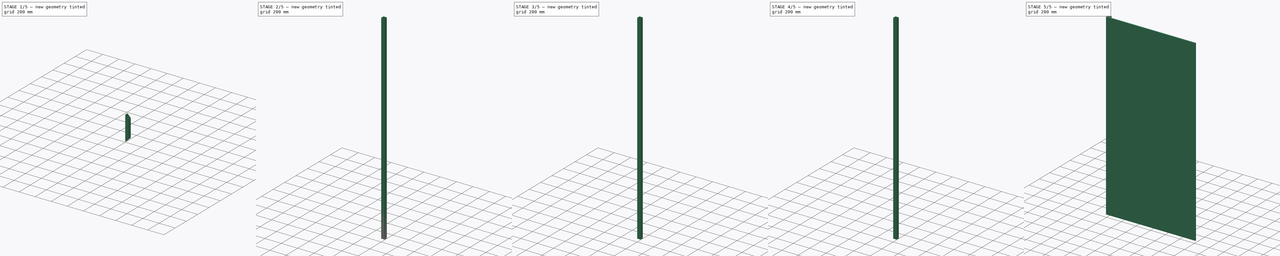
[diagram: build sequence overview — one tinted view per stage of 5, left to right]
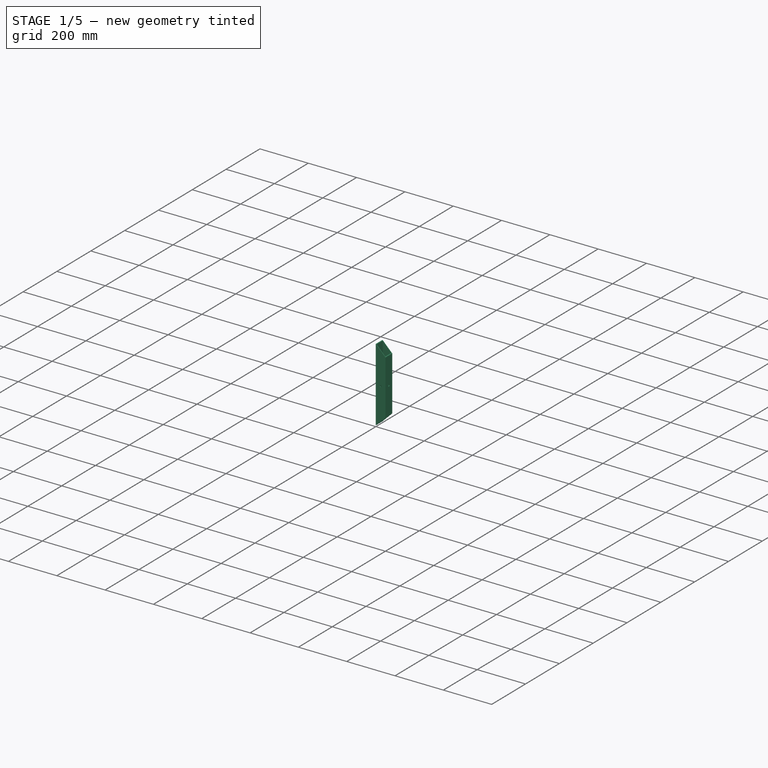
[diagram: stage 1 of 5 — iso view after this stage's code; geometry added in this stage tinted green]
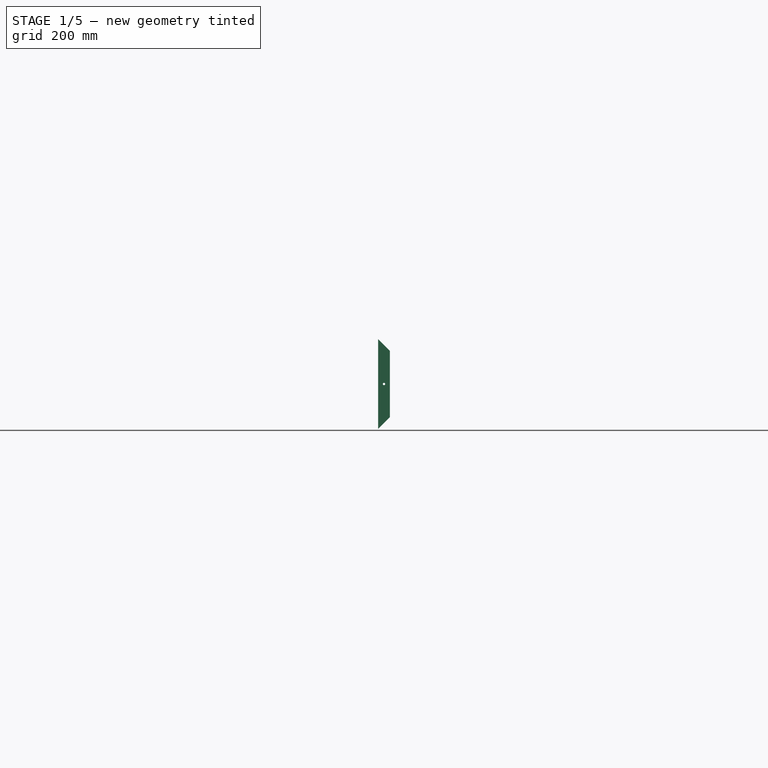
[diagram: stage 1 of 5 — front view after this stage's code; geometry added in this stage tinted green]
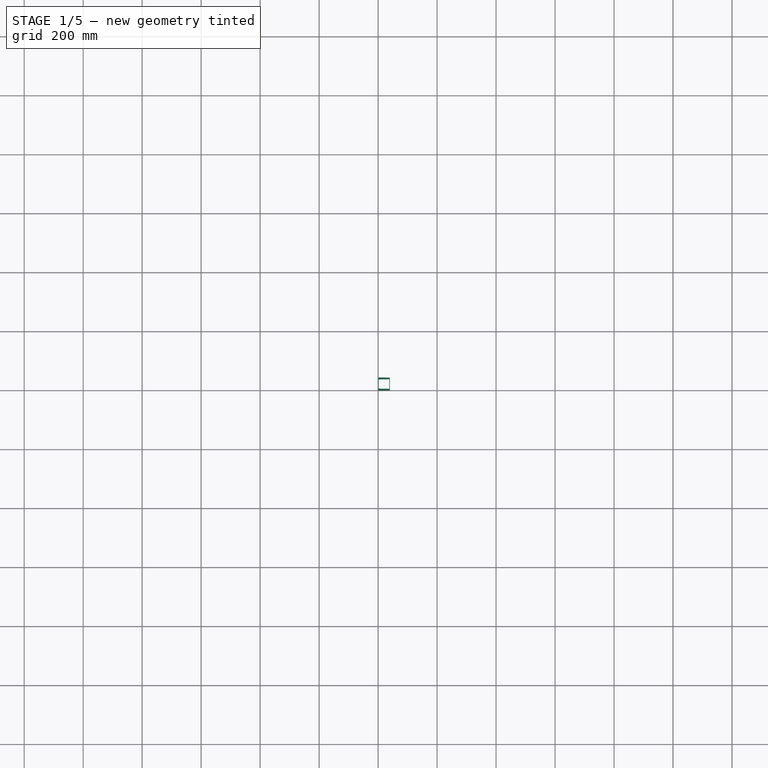
[diagram: stage 1 of 5 — top view after this stage's code; geometry added in this stage tinted green]
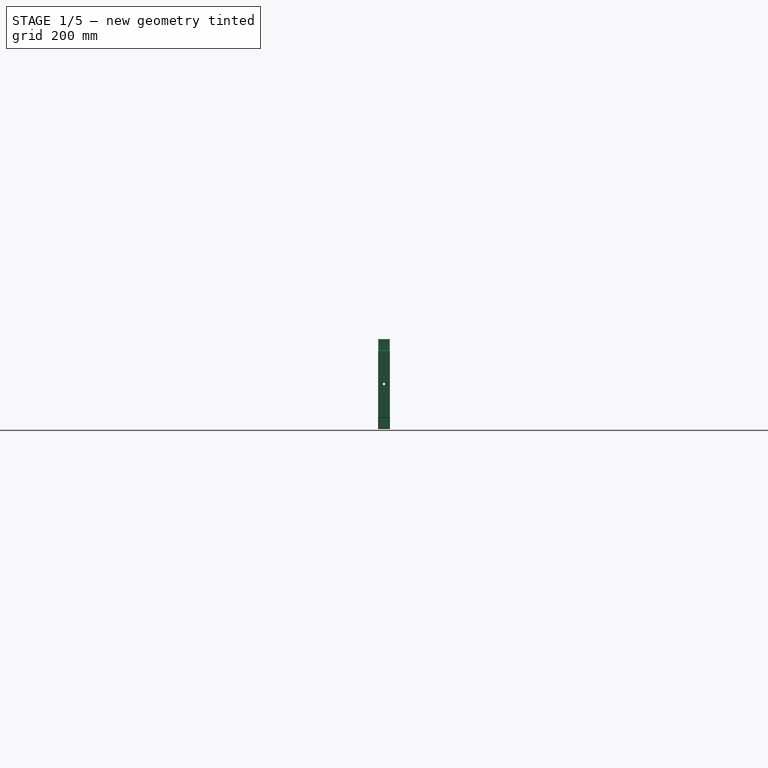
[diagram: stage 1 of 5 — right view after this stage's code; geometry added in this stage tinted green]
FCSTD DOCUMENT  (FreeCAD 1.0R39319 (Git))
Label: MA_booth_01
License: All rights reserved
LicenseURL: https://en.wikipedia.org/wiki/All_rights_reserved
objects: Sketcher::SketchObject×13, PartDesign::Body×8, PartDesign::Draft×8, PartDesign::Pad×7, PartDesign::SubShapeBinder×5, PartDesign::Pocket×5, PartDesign::Line×5, PartDesign::PolarPattern×5, Spreadsheet::Sheet×1
note: 114 computed .brp shape members not serialized (recipe doc carries the construction recipe); baked Part::Feature solids carry a one-line shape summary decoded from their .brp

FEATURE [PartDesign::Body] Body007  label="ply_8x4"
  AllowCompound = false
  Group = -> [Sketch011,Pad005]
  Origin = -> Origin007
  Tip = -> Pad005
FEATURE [PartDesign::SubShapeBinder] Binder004
  BindCopyOnChange = 0
  BindMode = 0
  ClaimChildren = false
  Context = -> Body009 [Binder004.]
  Fuse = false
  MakeFace = true
  OffsetFill = false
  OffsetIntersection = false
  OffsetJoinType = 0
  OffsetOpenResult = false
  PartialLoad = false
  Refine = true
  Relative = true
  _Version = 2
FEATURE [Sketcher::SketchObject] Sketch013
  ArcFitTolerance = 1e-06
  AttachmentSupport = -> [XY_Plane009]
  ExternalGeometry = -> [Binder004]
  FullyConstrained = true
  MakeInternals = false
  MapMode = 5
  sketch-geometry (8):
    g0: LineSegment StartX=0 StartY=0 StartZ=0 EndX=40 EndY=0 EndZ=0
    g1: LineSegment StartX=40 StartY=0 StartZ=0 EndX=40 EndY=40 EndZ=0
    g2: LineSegment StartX=40 StartY=40 StartZ=0 EndX=0 EndY=40 EndZ=0
    g3: LineSegment StartX=0 StartY=40 StartZ=0 EndX=0 EndY=0 EndZ=0
    g4: LineSegment StartX=2 StartY=2 StartZ=0 EndX=38 EndY=2 EndZ=0
    g5: LineSegment StartX=38 StartY=2 StartZ=0 EndX=38 EndY=38 EndZ=0
    g6: LineSegment StartX=38 StartY=38 StartZ=0 EndX=2 EndY=38 EndZ=0
    g7: LineSegment StartX=2 StartY=38 StartZ=0 EndX=2 EndY=2 EndZ=0
  constraints (20):
    c: Coincident(g0,g1)
    c: Coincident(g1,g2)
    c: Coincident(g2,g3)
    c: Coincident(g3,g0)
    c: Horizontal(g0)
    c: Horizontal(g2)
    c: Vertical(g1)
    c: Vertical(g3)
    c: Coincident(g0,g-1)
    c: Coincident(g1,g-5)
    c: Coincident(g4,g5)
    c: Coincident(g5,g6)
    c: Coincident(g6,g7)
    c: Coincident(g7,g4)
    c: Horizontal(g4)
    c: Horizontal(g6)
    c: Vertical(g5)
    c: Vertical(g7)
    c: Coincident(g4,g-4)
    c: Coincident(g5,g-3)
FEATURE [PartDesign::Pad] Pad006
  Direction = (0,0,1)
  Length = 304.8
  Length2 = 10
  Profile = -> Sketch013
  ReferenceAxis = -> Sketch013 [N_Axis]
  Refine = true
  Suppressed = false
  Type = 0
  expr: Length = Spreadsheet.ply_height_8 / 8
FEATURE [PartDesign::Draft] Draft006
  Angle = 45
  Base = -> Pad006 [Face10]
  BaseFeature = -> Pad006
  NeutralPlane = -> Pad006 [Face4]
  Refine = true
  SupportTransform = false
  Suppressed = false
FEATURE [PartDesign::Draft] Draft007
  Angle = 45
  Base = -> Draft006 [Face9]
  BaseFeature = -> Draft006
  NeutralPlane = -> Draft006 [Face4]
  Refine = true
  SupportTransform = false
  Suppressed = false
FEATURE [Sketcher::SketchObject] Sketch014
  ArcFitTolerance = 1e-06
  AttachmentSupport = -> [Draft007]
  ExternalGeometry = -> [Draft007]
  FullyConstrained = true
  MakeInternals = false
  MapMode = 5
  Placement = pos=(0,0,0) rot=(0.57735,-0.57735,-0.57735;2.0944rad)
  expr: Constraints[5] = Spreadsheet.ply_height_8 / 16
  expr: Constraints[7] = Spreadsheet.hole_dia
  sketch-geometry (3):
    g0: LineSegment [constr] StartX=-20 StartY=9e-16 StartZ=0 EndX=-20 EndY=152.4 EndZ=0
    g1: LineSegment [constr] StartX=-20 StartY=152.4 StartZ=0 EndX=-20 EndY=304.8 EndZ=0
    g2: Circle CenterX=-20 CenterY=152.4 CenterZ=0 NormalX=0 NormalY=0 NormalZ=1 AngleXU=0 Radius=4
  constraints (8):
    c: Symmetric(g-3,g-3,g0)
    c: Vertical(g0)
    c: Coincident(g1,g0)
    c: Vertical(g1)
    c: Equal(g1,g0)
    c: Distance(g0,g0) = 152.4
    c: Coincident(g2,g0)
    c: Diameter(g2) = 8
FEATURE [PartDesign::Pocket] Pocket004
  BaseFeature = -> Draft007
  Direction = (1,0,0)
  Length = 5
  Length2 = 5
  Profile = -> Sketch014
  ReferenceAxis = -> Sketch014 [N_Axis]
  Refine = true
  Suppressed = false
  Type = 1
FEATURE [PartDesign::Body] Body006  label="40x40x2x8ft_corner"
  AllowCompound = false
  Group = -> [Sketch009,Binder003,Pad004,Sketch010,Pocket003,DatumLine003,PolarPattern003]
  Origin = -> Origin006
  Tip = -> PolarPattern003
FEATURE [PartDesign::Line] DatumLine004
  AttacherType = Attacher::AttachEngineLine
  AttachmentOffset = pos=(20,20,0) rot=(0,0,1;0rad)
  AttachmentSupport = -> [Z_Axis009]
  Length = 20
  MapMode = 29
  Placement = pos=(20,20,0) rot=(0,0,1;0rad)
  ResizeMode = 0
  expr: .AttachmentOffset.Base.x = Spreadsheet.pipe_x / 2
  expr: .AttachmentOffset.Base.y = Spreadsheet.pipe_y / 2
FEATURE [PartDesign::PolarPattern] PolarPattern004
  Angle = 90
  Axis = -> DatumLine004
  BaseFeature = -> Pocket004
  Mode = 0
  Occurrences = 2
  Offset = 120
  Originals = -> [Pocket004]
  Refine = true
  Suppressed = false
  TransformMode = 0
FEATURE [PartDesign::Body] Body009  label="40x40x2x1ft"
  AllowCompound = false
  Group = -> [Binder004,Sketch013,Pad006,Draft006,Draft007,Sketch014,Pocket004,DatumLine004,PolarPattern004]
  Origin = -> Origin009
  Tip = -> PolarPattern004
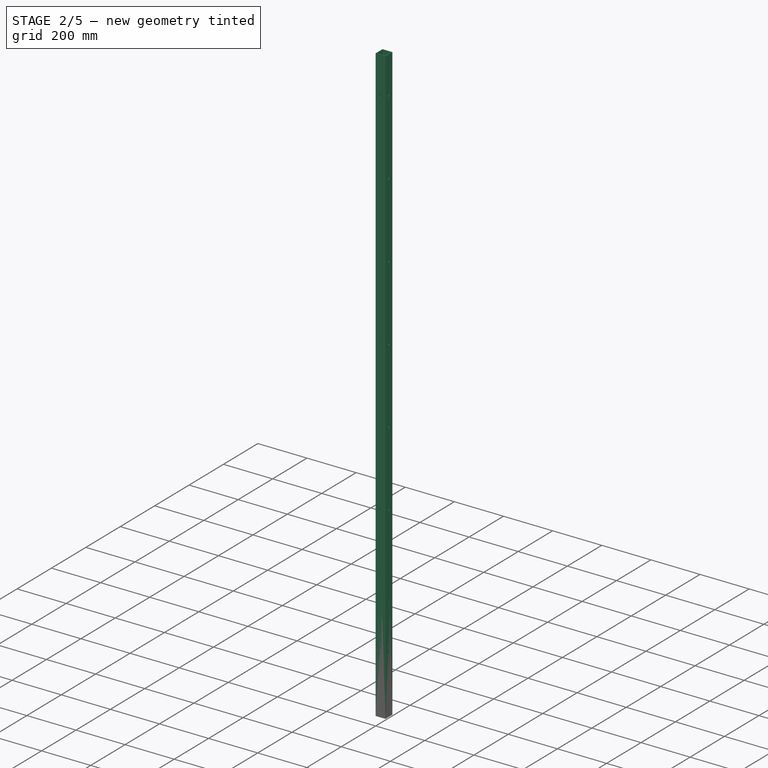
[diagram: stage 2 of 5 — iso view after this stage's code; geometry added in this stage tinted green]
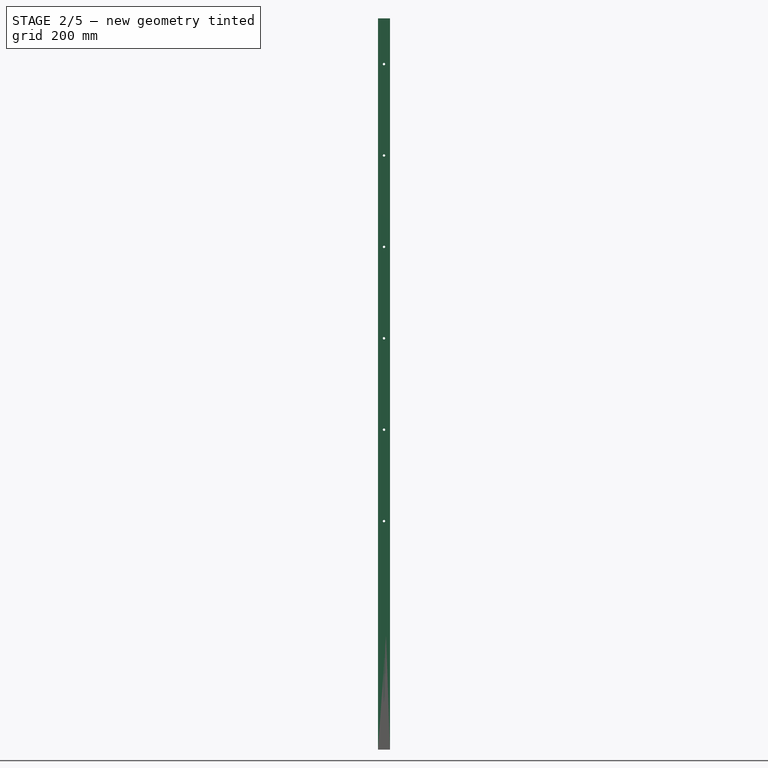
[diagram: stage 2 of 5 — front view after this stage's code; geometry added in this stage tinted green]
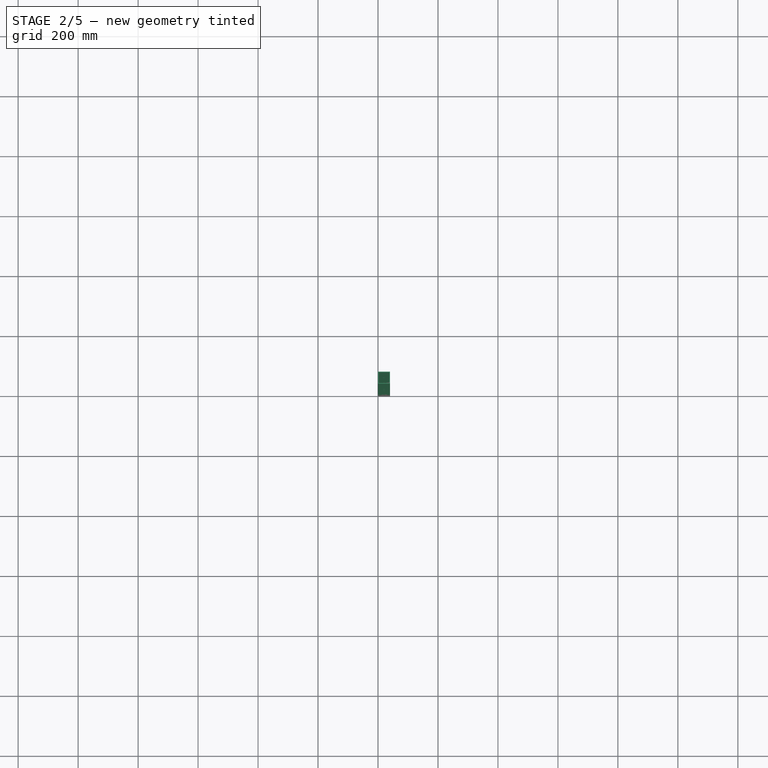
[diagram: stage 2 of 5 — top view after this stage's code; geometry added in this stage tinted green]
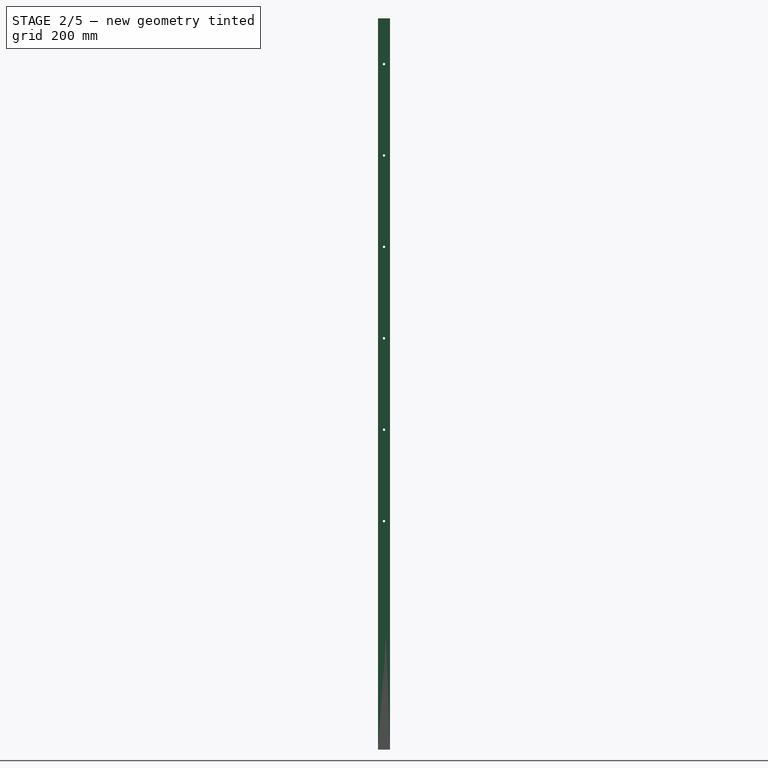
[diagram: stage 2 of 5 — right view after this stage's code; geometry added in this stage tinted green]
FEATURE [PartDesign::SubShapeBinder] Binder002
  BindCopyOnChange = 0
  BindMode = 0
  ClaimChildren = false
  Context = -> Body003 [Binder002.]
  Fuse = false
  MakeFace = true
  OffsetFill = false
  OffsetIntersection = false
  OffsetJoinType = 0
  OffsetOpenResult = false
  PartialLoad = false
  Refine = true
  Relative = true
  Support = -> [Body[Sketch.]]
  _Version = 2
FEATURE [Sketcher::SketchObject] Sketch003
  ArcFitTolerance = 1e-06
  AttachmentSupport = -> [XY_Plane003]
  ExternalGeometry = -> [Binder002]
  FullyConstrained = true
  MakeInternals = false
  MapMode = 5
  sketch-geometry (8):
    g0: LineSegment StartX=0 StartY=0 StartZ=0 EndX=40 EndY=0 EndZ=0
    g1: LineSegment StartX=40 StartY=0 StartZ=0 EndX=40 EndY=40 EndZ=0
    g2: LineSegment StartX=40 StartY=40 StartZ=0 EndX=0 EndY=40 EndZ=0
    g3: LineSegment StartX=0 StartY=40 StartZ=0 EndX=0 EndY=0 EndZ=0
    g4: LineSegment StartX=2 StartY=2 StartZ=0 EndX=38 EndY=2 EndZ=0
    g5: LineSegment StartX=38 StartY=2 StartZ=0 EndX=38 EndY=38 EndZ=0
    g6: LineSegment StartX=38 StartY=38 StartZ=0 EndX=2 EndY=38 EndZ=0
    g7: LineSegment StartX=2 StartY=38 StartZ=0 EndX=2 EndY=2 EndZ=0
  constraints (20):
    c: Coincident(g0,g1)
    c: Coincident(g1,g2)
    c: Coincident(g2,g3)
    c: Coincident(g3,g0)
    c: Horizontal(g0)
    c: Horizontal(g2)
    c: Vertical(g1)
    c: Vertical(g3)
    c: Coincident(g0,g-1)
    c: Coincident(g1,g-5)
    c: Coincident(g4,g5)
    c: Coincident(g5,g6)
    c: Coincident(g6,g7)
    c: Coincident(g7,g4)
    c: Horizontal(g4)
    c: Horizontal(g6)
    c: Vertical(g5)
    c: Vertical(g7)
    c: Coincident(g4,g-4)
    c: Coincident(g5,g-3)
FEATURE [PartDesign::Pad] Pad002
  Direction = (0,0,1)
  Length = 609.6
  Length2 = 10
  Profile = -> Sketch003
  ReferenceAxis = -> Sketch003 [N_Axis]
  Refine = true
  Suppressed = false
  Type = 0
  expr: Length = Spreadsheet.ply_height_8 / 4
FEATURE [PartDesign::Draft] Draft004
  Angle = 45
  Base = -> Pad002 [Face10]
  BaseFeature = -> Pad002
  NeutralPlane = -> Pad002 [Face4]
  Refine = true
  SupportTransform = false
  Suppressed = false
FEATURE [PartDesign::Body] Body004  label="ply_6x3"
  AllowCompound = false
  Group = -> [Sketch007,Pad003]
  Origin = -> Origin004
  Tip = -> Pad003
FEATURE [PartDesign::SubShapeBinder] Binder003
  BindCopyOnChange = 0
  BindMode = 0
  ClaimChildren = false
  Context = -> Body006 [Binder003.]
  Fuse = false
  MakeFace = true
  OffsetFill = false
  OffsetIntersection = false
  OffsetJoinType = 0
  OffsetOpenResult = false
  PartialLoad = false
  Refine = true
  Relative = true
  _Version = 2
FEATURE [Sketcher::SketchObject] Sketch009
  ArcFitTolerance = 1e-06
  AttachmentSupport = -> [XY_Plane006]
  ExternalGeometry = -> [Binder003]
  FullyConstrained = true
  MakeInternals = false
  MapMode = 5
  sketch-geometry (8):
    g0: LineSegment StartX=0 StartY=0 StartZ=0 EndX=40 EndY=0 EndZ=0
    g1: LineSegment StartX=40 StartY=0 StartZ=0 EndX=40 EndY=40 EndZ=0
    g2: LineSegment StartX=40 StartY=40 StartZ=0 EndX=0 EndY=40 EndZ=0
    g3: LineSegment StartX=0 StartY=40 StartZ=0 EndX=0 EndY=0 EndZ=0
    g4: LineSegment StartX=2 StartY=2 StartZ=0 EndX=38 EndY=2 EndZ=0
    g5: LineSegment StartX=38 StartY=2 StartZ=0 EndX=38 EndY=38 EndZ=0
    g6: LineSegment StartX=38 StartY=38 StartZ=0 EndX=2 EndY=38 EndZ=0
    g7: LineSegment StartX=2 StartY=38 StartZ=0 EndX=2 EndY=2 EndZ=0
  constraints (20):
    c: Coincident(g0,g1)
    c: Coincident(g1,g2)
    c: Coincident(g2,g3)
    c: Coincident(g3,g0)
    c: Horizontal(g0)
    c: Horizontal(g2)
    c: Vertical(g1)
    c: Vertical(g3)
    c: Coincident(g0,g-1)
    c: Coincident(g1,g-3)
    c: Coincident(g4,g5)
    c: Coincident(g5,g6)
    c: Coincident(g6,g7)
    c: Coincident(g7,g4)
    c: Horizontal(g4)
    c: Horizontal(g6)
    c: Vertical(g5)
    c: Vertical(g7)
    c: Coincident(g4,g-6)
    c: Coincident(g5,g-4)
FEATURE [PartDesign::Pad] Pad004
  Direction = (0,0,1)
  Length = 2438.4
  Length2 = 10
  Profile = -> Sketch009
  ReferenceAxis = -> Sketch009 [N_Axis]
  Refine = true
  Suppressed = false
  Type = 0
  expr: Length = Spreadsheet.ply_height_8
FEATURE [Sketcher::SketchObject] Sketch010
  ArcFitTolerance = 1e-06
  AttachmentSupport = -> [Pad004]
  ExternalGeometry = -> [Pad004,Binder003]
  FullyConstrained = true
  MakeInternals = false
  MapMode = 5
  Placement = pos=(0,0,0) rot=(0.57735,-0.57735,-0.57735;2.0944rad)
  expr: Constraints[20] = Spreadsheet.ply_height_8 / 16
  expr: Constraints[34] = Spreadsheet.hole_dia
  sketch-geometry (31):
    g0: LineSegment [constr] StartX=-20 StartY=0 StartZ=0 EndX=-20 EndY=152.4 EndZ=0
    g1: LineSegment [constr] StartX=-20 StartY=152.4 StartZ=0 EndX=-20 EndY=304.8 EndZ=0
    g2: LineSegment [constr] StartX=-20 StartY=304.8 StartZ=0 EndX=-20 EndY=457.2 EndZ=0
    g3: LineSegment [constr] StartX=-20 StartY=457.2 StartZ=0 EndX=-20 EndY=609.6 EndZ=0
    g4: LineSegment [constr] StartX=-20 StartY=609.6 StartZ=0 EndX=-20 EndY=762 EndZ=0
    g5: LineSegment [constr] StartX=-20 StartY=762 StartZ=0 EndX=-20 EndY=914.4 EndZ=0
    g6: LineSegment [constr] StartX=-20 StartY=914.4 StartZ=0 EndX=-20 EndY=1066.8 EndZ=0
    g7: LineSegment [constr] StartX=-20 StartY=1066.8 StartZ=0 EndX=-20 EndY=1219.2 EndZ=0
    g8: Circle CenterX=-20 CenterY=1066.8 CenterZ=0 NormalX=0 NormalY=0 NormalZ=1 AngleXU=0 Radius=4
    g9: Circle [constr] CenterX=-20 CenterY=914.4 CenterZ=0 NormalX=0 NormalY=0 NormalZ=1 AngleXU=0 Radius=4
    g10: Circle CenterX=-20 CenterY=762 CenterZ=0 NormalX=0 NormalY=0 NormalZ=1 AngleXU=0 Radius=4
    g11: Circle [constr] CenterX=-20 CenterY=609.6 CenterZ=0 NormalX=0 NormalY=0 NormalZ=1 AngleXU=0 Radius=4
    g12: Circle CenterX=-20 CenterY=457.2 CenterZ=0 NormalX=0 NormalY=0 NormalZ=1 AngleXU=0 Radius=4
    g13: Circle [constr] CenterX=-20 CenterY=304.8 CenterZ=0 NormalX=0 NormalY=0 NormalZ=1 AngleXU=0 Radius=4
    g14: Circle CenterX=-20 CenterY=152.4 CenterZ=0 NormalX=0 NormalY=0 NormalZ=1 AngleXU=0 Radius=4
    g15: LineSegment [constr] StartX=-20 StartY=1219.2 StartZ=0 EndX=-20 EndY=1371.6 EndZ=0
    g16: LineSegment [constr] StartX=-20 StartY=1371.6 StartZ=0 EndX=-20 EndY=1524 EndZ=0
    g17: LineSegment [constr] StartX=-20 StartY=1524 StartZ=0 EndX=-20 EndY=1676.4 EndZ=0
    g18: LineSegment [constr] StartX=-20 StartY=1676.4 StartZ=0 EndX=-20 EndY=1828.8 EndZ=0
    g19: LineSegment [constr] StartX=-20 StartY=1828.8 StartZ=0 EndX=-20 EndY=1981.2 EndZ=0
    g20: LineSegment [constr] StartX=-20 StartY=1981.2 StartZ=0 EndX=-20 EndY=2133.6 EndZ=0
    g21: LineSegment [constr] StartX=-20 StartY=2133.6 StartZ=0 EndX=-20 EndY=2286 EndZ=0
    g22: LineSegment [constr] StartX=-20 StartY=2286 StartZ=0 EndX=-20 EndY=2438.4 EndZ=0
    g23: Circle [constr] CenterX=-20 CenterY=1219.2 CenterZ=0 NormalX=0 NormalY=0 NormalZ=1 AngleXU=0 Radius=4
    g24: Circle CenterX=-20 CenterY=1371.6 CenterZ=0 NormalX=0 NormalY=0 NormalZ=1 AngleXU=0 Radius=4
    g25: Circle [constr] CenterX=-20 CenterY=1524 CenterZ=0 NormalX=0 NormalY=0 NormalZ=1 AngleXU=0 Radius=4
    g26: Circle CenterX=-20 CenterY=1676.4 CenterZ=0 NormalX=0 NormalY=0 NormalZ=1 AngleXU=0 Radius=4
    g27: Circle [constr] CenterX=-20 CenterY=1828.8 CenterZ=0 NormalX=0 NormalY=0 NormalZ=1 AngleXU=0 Radius=4
    g28: Circle CenterX=-20 CenterY=1981.2 CenterZ=0 NormalX=0 NormalY=0 NormalZ=1 AngleXU=0 Radius=4
    g29: Circle [constr] CenterX=-20 CenterY=2133.6 CenterZ=0 NormalX=0 NormalY=0 NormalZ=1 AngleXU=0 Radius=4
    g30: Circle CenterX=-20 CenterY=2286 CenterZ=0 NormalX=0 NormalY=0 NormalZ=1 AngleXU=0 Radius=4
  constraints (77):
    c: Vertical(g0)
    c: Coincident(g1,g0)
    c: Vertical(g1)
    c: Coincident(g2,g1)
    c: Vertical(g2)
    c: Coincident(g3,g2)
    c: Vertical(g3)
    c: Coincident(g4,g3)
    c: Vertical(g4)
    c: Coincident(g5,g4)
    c: Vertical(g5)
    c: Coincident(g6,g5)
    c: Vertical(g6)
    c: Coincident(g7,g6)
    c: Equal(g6,g5)
    c: Equal(g5,g4)
    c: Equal(g4,g3)
    c: Equal(g3,g2)
    c: Equal(g2,g1)
    c: Equal(g1,g0)
    c: Distance(g0,g0) = 152.4
    c: Coincident(g8,g6)
    c: Coincident(g9,g5)
    c: Coincident(g10,g4)
    c: Coincident(g11,g3)
    c: Coincident(g12,g2)
    c: Coincident(g13,g1)
    c: Coincident(g14,g0)
    c: Equal(g14,g13)
    c: Equal(g13,g12)
    c: Equal(g12,g11)
    c: Equal(g11,g10)
    c: Equal(g10,g9)
    c: Equal(g9,g8)
    c: Diameter(g8) = 8
    c: Symmetric(g-4,g-1,g0)
    c: Coincident(g15,g7)
    c: Vertical(g15)
    c: Coincident(g16,g15)
    c: Vertical(g16)
    c: Coincident(g17,g16)
    c: Vertical(g17)
    c: Coincident(g18,g17)
    c: Vertical(g18)
    c: Coincident(g19,g18)
    c: Vertical(g19)
    c: Coincident(g20,g19)
    c: Vertical(g20)
    c: Coincident(g21,g20)
    c: Vertical(g21)
    c: Coincident(g22,g21)
    c: Symmetric(g-3,g-3,g22)
    c: Vertical(g22)
    c: Equal(g22,g21)
    c: Equal(g21,g20)
    c: Equal(g20,g19)
    c: Equal(g19,g18)
    c: Equal(g18,g17)
    c: Equal(g17,g16)
    c: Equal(g16,g15)
    c: Equal(g15,g7)
    c: Coincident(g23,g7)
    c: Coincident(g24,g15)
    c: Coincident(g25,g16)
    c: Coincident(g26,g17)
    c: Coincident(g27,g18)
    c: Coincident(g28,g19)
    c: Coincident(g29,g20)
    c: Coincident(g30,g21)
    c: Equal(g30,g29)
    c: Equal(g29,g28)
    c: Equal(g28,g27)
    c: Equal(g27,g26)
    c: Equal(g26,g25)
    c: Equal(g25,g24)
    c: Equal(g24,g23)
    c: Equal(g23,g8)
FEATURE [PartDesign::Pocket] Pocket003
  BaseFeature = -> Pad004
  Direction = (1,0,0)
  Length = 5
  Length2 = 5
  Profile = -> Sketch010
  ReferenceAxis = -> Sketch010 [N_Axis]
  Refine = true
  Suppressed = false
  Type = 1
FEATURE [PartDesign::Body] Body003  label="40x40x2x2ft"
  AllowCompound = false
  Group = -> [Binder002,Sketch003,Pad002,Draft004,Draft005,Sketch006,Pocket002,DatumLine002,PolarPattern002]
  Origin = -> Origin003
  Tip = -> PolarPattern002
FEATURE [PartDesign::Line] DatumLine003
  AttacherType = Attacher::AttachEngineLine
  AttachmentOffset = pos=(20,20,0) rot=(0,0,1;0rad)
  AttachmentSupport = -> [Z_Axis006]
  Length = 20
  MapMode = 29
  Placement = pos=(20,20,0) rot=(0,0,1;0rad)
  ResizeMode = 0
  expr: .AttachmentOffset.Base.x = Spreadsheet.pipe_x / 2
  expr: .AttachmentOffset.Base.y = Spreadsheet.pipe_y / 2
FEATURE [PartDesign::PolarPattern] PolarPattern003
  Angle = 90
  Axis = -> DatumLine003
  BaseFeature = -> Pocket003
  Mode = 0
  Occurrences = 2
  Offset = 120
  Originals = -> [Pocket003]
  Refine = true
  Suppressed = false
  TransformMode = 0
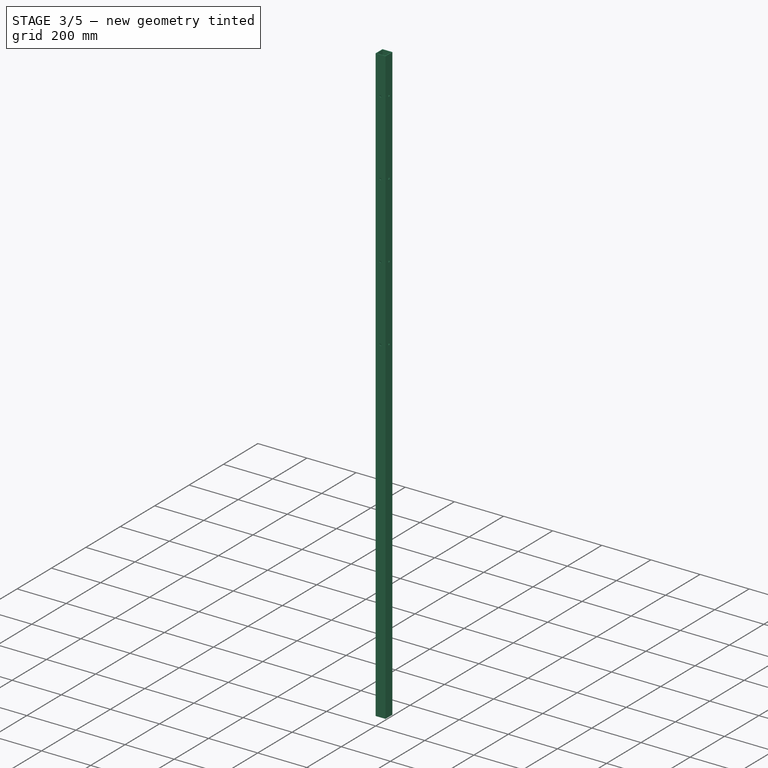
[diagram: stage 3 of 5 — iso view after this stage's code; geometry added in this stage tinted green]
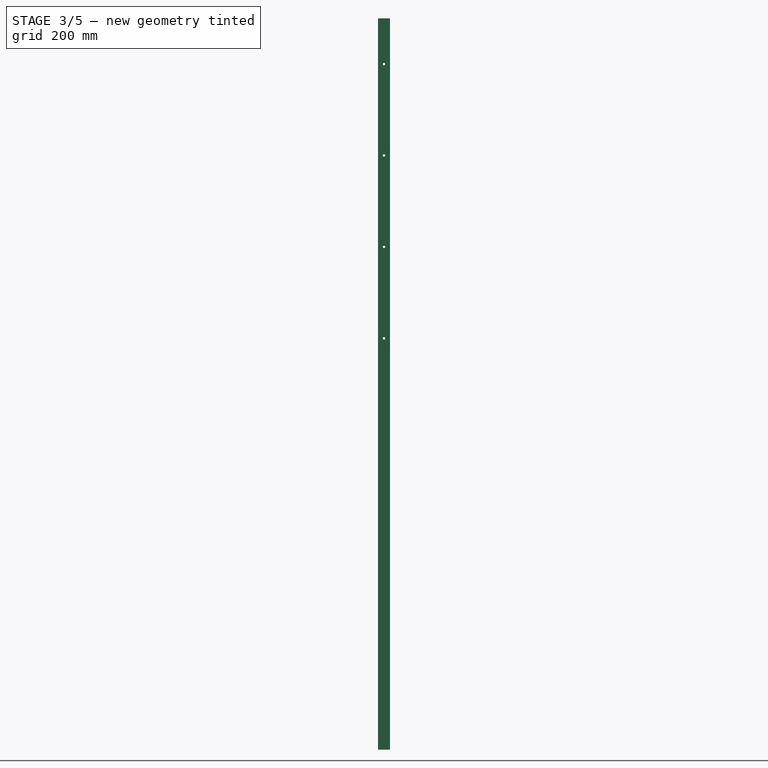
[diagram: stage 3 of 5 — front view after this stage's code; geometry added in this stage tinted green]
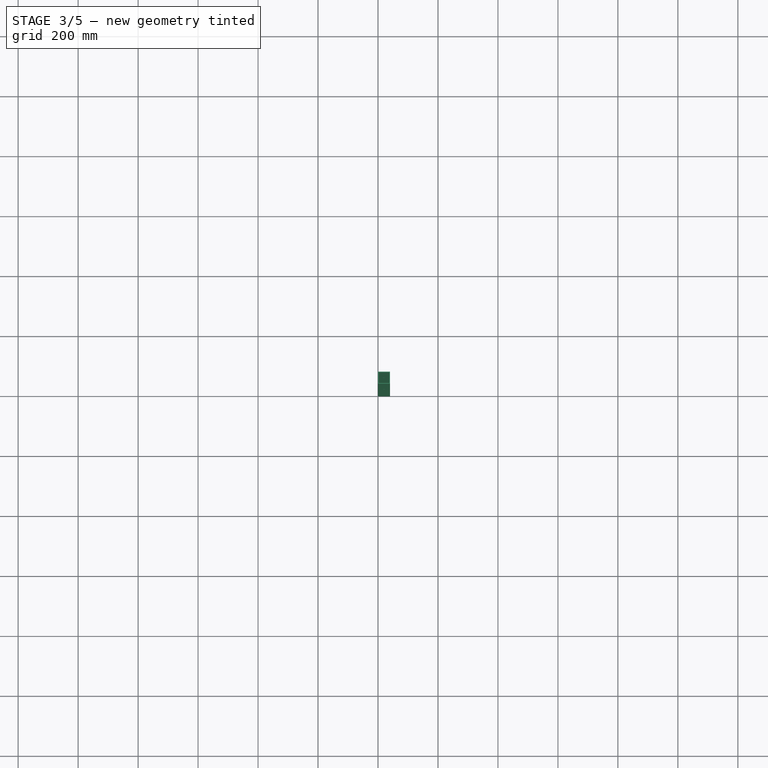
[diagram: stage 3 of 5 — top view after this stage's code; geometry added in this stage tinted green]
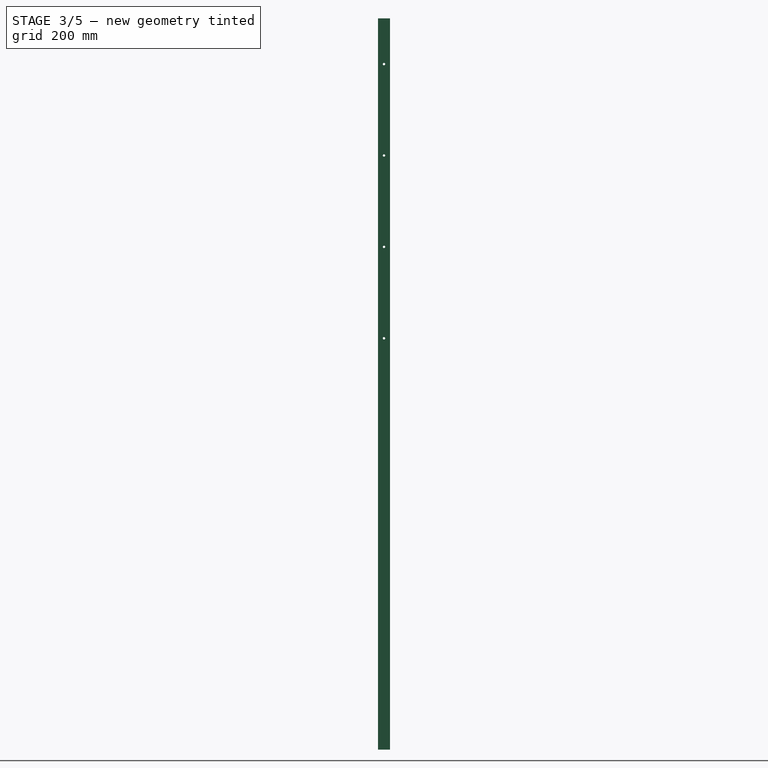
[diagram: stage 3 of 5 — right view after this stage's code; geometry added in this stage tinted green]
FEATURE [PartDesign::SubShapeBinder] Binder001
  BindCopyOnChange = 0
  BindMode = 0
  ClaimChildren = false
  Context = -> Body002 [Binder001.]
  Fuse = false
  MakeFace = true
  OffsetFill = false
  OffsetIntersection = false
  OffsetJoinType = 0
  OffsetOpenResult = false
  PartialLoad = false
  Refine = true
  Relative = true
  Support = -> [Body[Sketch.]]
  _Version = 2
FEATURE [Sketcher::SketchObject] Sketch002
  ArcFitTolerance = 1e-06
  AttachmentSupport = -> [XY_Plane002]
  ExternalGeometry = -> [Binder001]
  FullyConstrained = true
  MakeInternals = false
  MapMode = 5
  sketch-geometry (8):
    g0: LineSegment StartX=0 StartY=0 StartZ=0 EndX=40 EndY=0 EndZ=0
    g1: LineSegment StartX=40 StartY=0 StartZ=0 EndX=40 EndY=40 EndZ=0
    g2: LineSegment StartX=40 StartY=40 StartZ=0 EndX=0 EndY=40 EndZ=0
    g3: LineSegment StartX=0 StartY=40 StartZ=0 EndX=0 EndY=0 EndZ=0
    g4: LineSegment StartX=2 StartY=2 StartZ=0 EndX=38 EndY=2 EndZ=0
    g5: LineSegment StartX=38 StartY=2 StartZ=0 EndX=38 EndY=38 EndZ=0
    g6: LineSegment StartX=38 StartY=38 StartZ=0 EndX=2 EndY=38 EndZ=0
    g7: LineSegment StartX=2 StartY=38 StartZ=0 EndX=2 EndY=2 EndZ=0
  constraints (20):
    c: Coincident(g0,g1)
    c: Coincident(g1,g2)
    c: Coincident(g2,g3)
    c: Coincident(g3,g0)
    c: Horizontal(g0)
    c: Horizontal(g2)
    c: Vertical(g1)
    c: Vertical(g3)
    c: Coincident(g0,g-1)
    c: Coincident(g1,g-6)
    c: Coincident(g4,g5)
    c: Coincident(g5,g6)
    c: Coincident(g6,g7)
    c: Coincident(g7,g4)
    c: Horizontal(g4)
    c: Horizontal(g6)
    c: Vertical(g5)
    c: Vertical(g7)
    c: Coincident(g4,g-3)
    c: Coincident(g5,g-4)
FEATURE [PartDesign::Pad] Pad001
  Direction = (0,0,1)
  Length = 1219.2
  Length2 = 10
  Profile = -> Sketch002
  ReferenceAxis = -> Sketch002 [N_Axis]
  Refine = true
  Suppressed = false
  Type = 0
  expr: Length = Spreadsheet.ply_width_8
FEATURE [PartDesign::Draft] Draft002
  Angle = 45
  Base = -> Pad001 [Face10]
  BaseFeature = -> Pad001
  NeutralPlane = -> Pad001 [Face4]
  Refine = true
  SupportTransform = false
  Suppressed = false
FEATURE [PartDesign::Draft] Draft005
  Angle = 45
  Base = -> Draft004 [Face9]
  BaseFeature = -> Draft004
  NeutralPlane = -> Draft004 [Face4]
  Refine = true
  SupportTransform = false
  Suppressed = false
FEATURE [Sketcher::SketchObject] Sketch006
  ArcFitTolerance = 1e-06
  AttachmentSupport = -> [Draft005]
  ExternalGeometry = -> [Draft005]
  FullyConstrained = true
  MakeInternals = false
  MapMode = 5
  Placement = pos=(0,0,0) rot=(0.57735,-0.57735,-0.57735;2.0944rad)
  expr: Constraints[5] = Spreadsheet.ply_height_8 / 16
  expr: Constraints[7] = Spreadsheet.hole_dia
  sketch-geometry (7):
    g0: LineSegment [constr] StartX=-20 StartY=9e-16 StartZ=0 EndX=-20 EndY=152.4 EndZ=0
    g1: LineSegment [constr] StartX=-20 StartY=152.4 StartZ=0 EndX=-20 EndY=304.8 EndZ=0
    g2: Circle CenterX=-20 CenterY=152.4 CenterZ=0 NormalX=0 NormalY=0 NormalZ=1 AngleXU=0 Radius=4
    g3: LineSegment [constr] StartX=-20 StartY=304.8 StartZ=0 EndX=-20 EndY=457.2 EndZ=0
    g4: LineSegment [constr] StartX=-20 StartY=457.2 StartZ=0 EndX=-20 EndY=609.6 EndZ=0
    g5: Circle [constr] CenterX=-20 CenterY=304.8 CenterZ=0 NormalX=0 NormalY=0 NormalZ=1 AngleXU=0 Radius=4
    g6: Circle CenterX=-20 CenterY=457.2 CenterZ=0 NormalX=0 NormalY=0 NormalZ=1 AngleXU=0 Radius=4
  constraints (17):
    c: Symmetric(g-4,g-4,g0)
    c: Vertical(g0)
    c: Coincident(g1,g0)
    c: Vertical(g1)
    c: Equal(g1,g0)
    c: Distance(g0,g0) = 152.4
    c: Coincident(g2,g0)
    c: Diameter(g2) = 8
    c: Coincident(g3,g1)
    c: Vertical(g3)
    c: Coincident(g4,g3)
    c: Symmetric(g-3,g-3,g4)
    c: Equal(g4,g3)
    c: Coincident(g5,g1)
    c: Coincident(g6,g3)
    c: Equal(g2,g5)
    c: Equal(g5,g6)
FEATURE [PartDesign::Pocket] Pocket002
  BaseFeature = -> Draft005
  Direction = (1,0,0)
  Length = 5
  Length2 = 5
  Profile = -> Sketch006
  ReferenceAxis = -> Sketch006 [N_Axis]
  Refine = true
  Suppressed = false
  Type = 1
FEATURE [PartDesign::Body] Body002  label="40x40x2x4ft"
  AllowCompound = false
  Group = -> [Binder001,Sketch002,Pad001,Draft002,Draft003,Sketch005,Pocket001,DatumLine001,PolarPattern001]
  Origin = -> Origin002
  Tip = -> PolarPattern001
FEATURE [PartDesign::Line] DatumLine002
  AttacherType = Attacher::AttachEngineLine
  AttachmentOffset = pos=(20,20,0) rot=(0,0,1;0rad)
  AttachmentSupport = -> [Z_Axis003]
  Length = 20
  MapMode = 29
  Placement = pos=(20,20,0) rot=(0,0,1;0rad)
  ResizeMode = 0
  expr: .AttachmentOffset.Base.x = Spreadsheet.pipe_x / 2
  expr: .AttachmentOffset.Base.y = Spreadsheet.pipe_y / 2
FEATURE [PartDesign::PolarPattern] PolarPattern002
  Angle = 90
  Axis = -> DatumLine002
  BaseFeature = -> Pocket002
  Mode = 0
  Occurrences = 2
  Offset = 120
  Originals = -> [Pocket002]
  Refine = true
  Suppressed = false
  TransformMode = 0
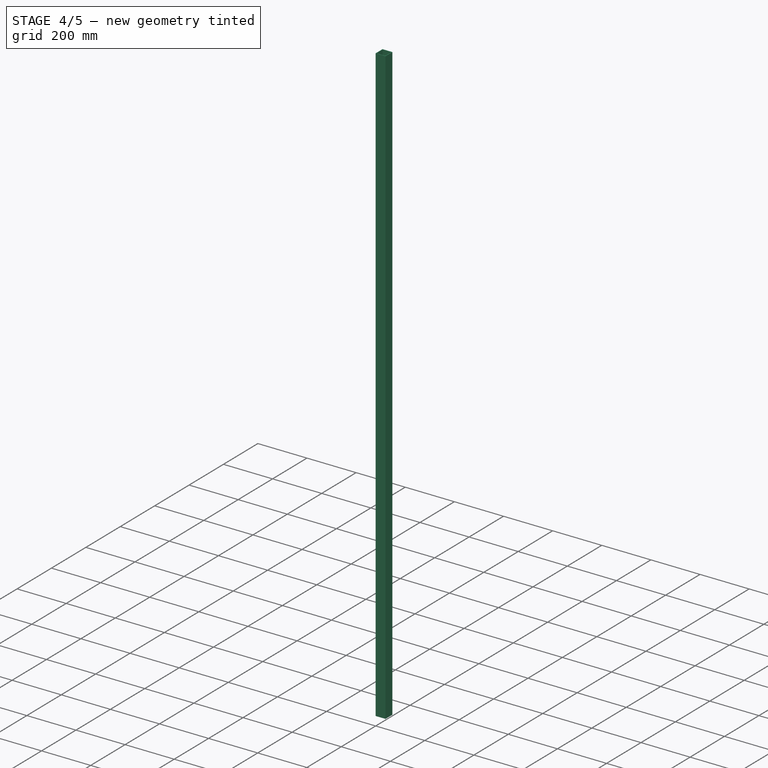
[diagram: stage 4 of 5 — iso view after this stage's code; geometry added in this stage tinted green]
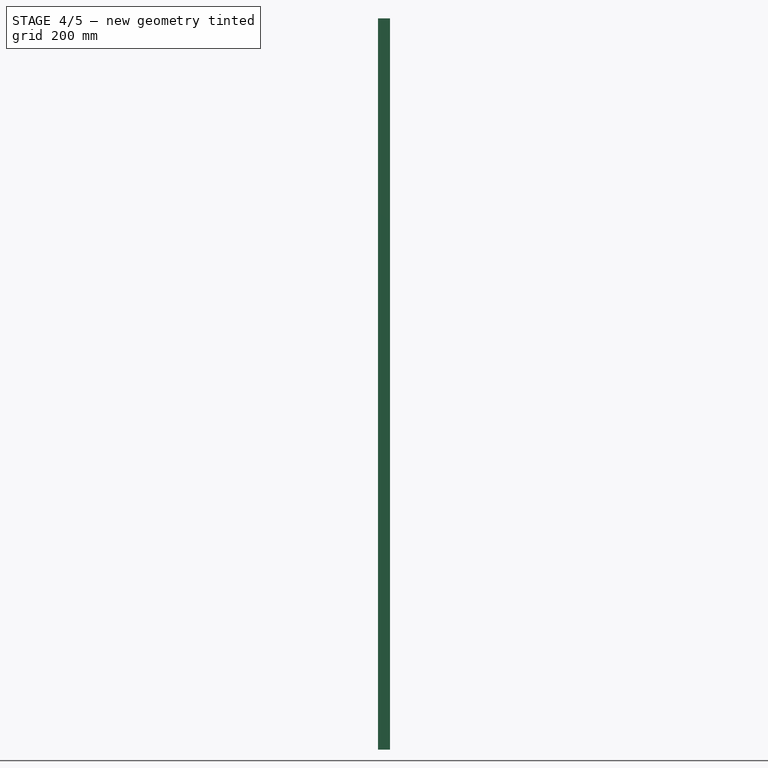
[diagram: stage 4 of 5 — front view after this stage's code; geometry added in this stage tinted green]
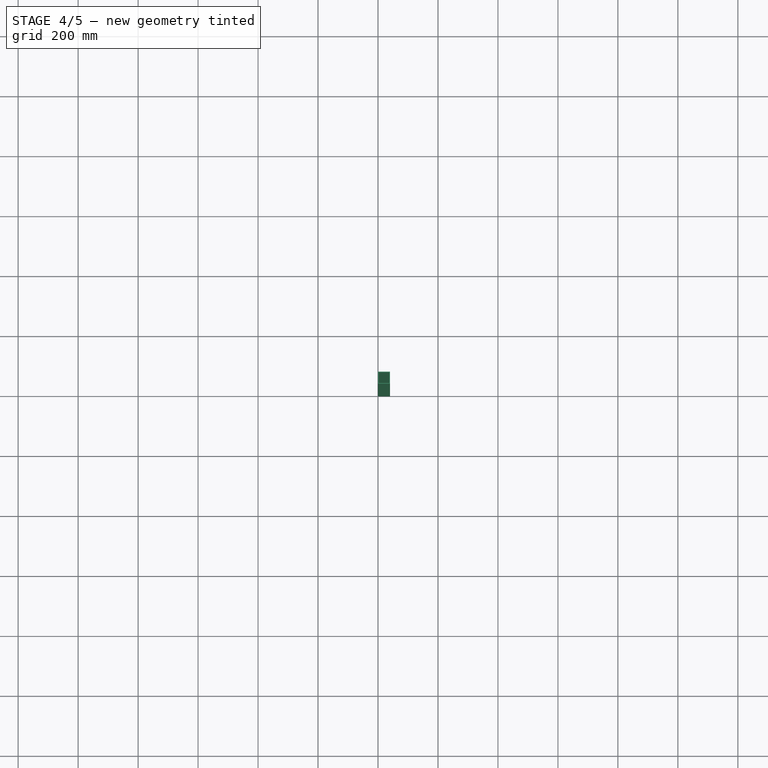
[diagram: stage 4 of 5 — top view after this stage's code; geometry added in this stage tinted green]
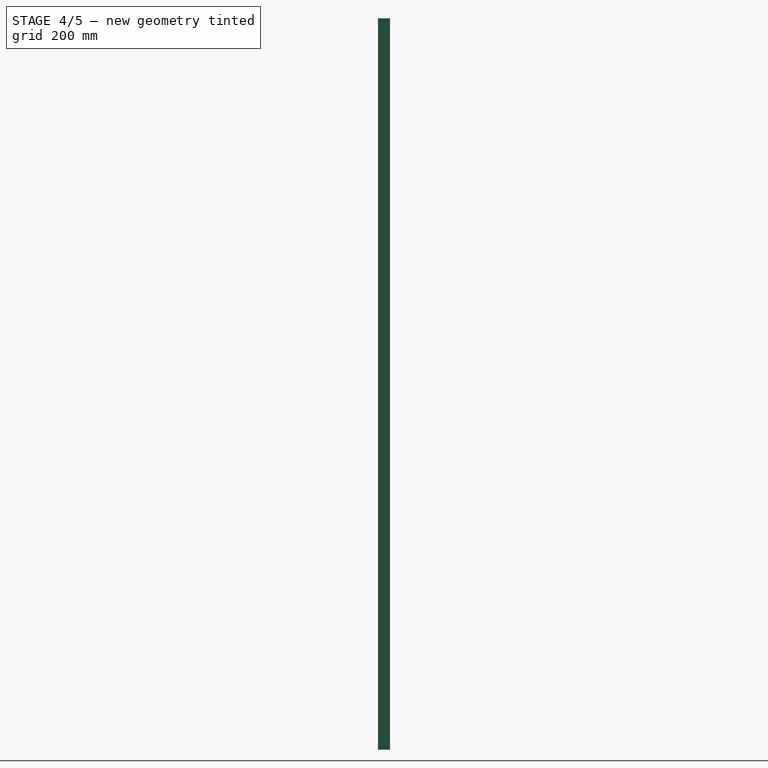
[diagram: stage 4 of 5 — right view after this stage's code; geometry added in this stage tinted green]
FEATURE [Spreadsheet::Sheet] Spreadsheet
  cells = A1='pipe_x; B1(pipe_x)=40; A2='pipe_y; B2(pipe_y)=40; A3='pipe_thick; B3(pipe_thick)=2; A4='hole_dia; B4(hole_dia)=8; A5='ply_width; B5(ply_width)==3 * 12 * 25.4; A6='ply_height; B6(ply_height)==6 * 12 * 25.4; A7='ply_thick; B7(ply_thick)==0.5 * 25.4; A8='ply_width_8; B8(ply_width_8)==4 * 12 * 25.4; A9='ply_height_8; B9(ply_height_8)==8 * 12 * 25.4; A10='ply_thick_8; B10(ply_thick_8)==0.5 * 25.4
FEATURE [Sketcher::SketchObject] Sketch
  ArcFitTolerance = 1e-06
  AttachmentSupport = -> [XY_Plane]
  FullyConstrained = true
  MakeInternals = false
  MapMode = 5
  expr: Constraints[34] = Spreadsheet.pipe_thick
  expr: Constraints[8] = Spreadsheet.pipe_x
  expr: Constraints[9] = Spreadsheet.pipe_y
  sketch-geometry (12):
    g0: LineSegment StartX=0 StartY=0 StartZ=0 EndX=40 EndY=0 EndZ=0
    g1: LineSegment StartX=40 StartY=0 StartZ=0 EndX=40 EndY=40 EndZ=0
    g2: LineSegment StartX=40 StartY=40 StartZ=0 EndX=0 EndY=40 EndZ=0
    g3: LineSegment StartX=0 StartY=40 StartZ=0 EndX=0 EndY=0 EndZ=0
    g4: LineSegment StartX=2 StartY=38 StartZ=0 EndX=2 EndY=2 EndZ=0
    g5: LineSegment StartX=2 StartY=2 StartZ=0 EndX=38 EndY=2 EndZ=0
    g6: LineSegment StartX=38 StartY=2 StartZ=0 EndX=38 EndY=38 EndZ=0
    g7: LineSegment StartX=38 StartY=38 StartZ=0 EndX=2 EndY=38 EndZ=0
    g8: LineSegment [constr] StartX=2 StartY=38 StartZ=0 EndX=2 EndY=40 EndZ=0
    g9: LineSegment [constr] StartX=2 StartY=38 StartZ=0 EndX=0 EndY=38 EndZ=0
    g10: LineSegment [constr] StartX=38 StartY=2 StartZ=0 EndX=38 EndY=0 EndZ=0
    g11: LineSegment [constr] StartX=38 StartY=2 StartZ=0 EndX=40 EndY=2 EndZ=0
  constraints (35):
    c: Coincident(g0,g1)
    c: Coincident(g1,g2)
    c: Coincident(g2,g3)
    c: Coincident(g3,g0)
    c: Horizontal(g0)
    c: Horizontal(g2)
    c: Vertical(g1)
    c: Vertical(g3)
    c: DistanceX(g2,g2) = 40
    c: DistanceY(g1,g1) = 40
    c: Coincident(g0,g-1)
    c: Coincident(g4,g5)
    c: Coincident(g5,g6)
    c: Coincident(g6,g7)
    c: Coincident(g7,g4)
    c: Vertical(g4)
    c: Vertical(g6)
    c: Horizontal(g5)
    c: Horizontal(g7)
    c: Coincident(g8,g4)
    c: PointOnObject(g8,g2)
    c: Vertical(g8)
    c: Coincident(g9,g4)
    c: PointOnObject(g9,g3)
    c: Horizontal(g9)
    c: Coincident(g10,g5)
    c: PointOnObject(g10,g0)
    c: Vertical(g10)
    c: Coincident(g11,g5)
    c: PointOnObject(g11,g1)
    c: Horizontal(g11)
    c: Equal(g11,g10)
    c: Equal(g10,g9)
    c: Equal(g9,g8)
    c: DistanceX(g9,g9) = 2
FEATURE [PartDesign::Body] Body
  AllowCompound = false
  Group = -> [Sketch]
  Origin = -> Origin
FEATURE [PartDesign::SubShapeBinder] Binder
  BindCopyOnChange = 0
  BindMode = 0
  ClaimChildren = false
  Context = -> Body001 [Binder.]
  Fuse = false
  MakeFace = true
  OffsetFill = false
  OffsetIntersection = false
  OffsetJoinType = 0
  OffsetOpenResult = false
  PartialLoad = false
  Refine = true
  Relative = true
  Support = -> [Body[Sketch.]]
  _Version = 2
FEATURE [Sketcher::SketchObject] Sketch001
  ArcFitTolerance = 1e-06
  AttachmentSupport = -> [XY_Plane001]
  ExternalGeometry = -> [Binder]
  FullyConstrained = true
  MakeInternals = false
  MapMode = 5
  sketch-geometry (8):
    g0: LineSegment StartX=0 StartY=0 StartZ=0 EndX=40 EndY=0 EndZ=0
    g1: LineSegment StartX=40 StartY=0 StartZ=0 EndX=40 EndY=40 EndZ=0
    g2: LineSegment StartX=40 StartY=40 StartZ=0 EndX=0 EndY=40 EndZ=0
    g3: LineSegment StartX=0 StartY=40 StartZ=0 EndX=0 EndY=0 EndZ=0
    g4: LineSegment StartX=2 StartY=2 StartZ=0 EndX=38 EndY=2 EndZ=0
    g5: LineSegment StartX=38 StartY=2 StartZ=0 EndX=38 EndY=38 EndZ=0
    g6: LineSegment StartX=38 StartY=38 StartZ=0 EndX=2 EndY=38 EndZ=0
    g7: LineSegment StartX=2 StartY=38 StartZ=0 EndX=2 EndY=2 EndZ=0
  constraints (20):
    c: Coincident(g0,g1)
    c: Coincident(g1,g2)
    c: Coincident(g2,g3)
    c: Coincident(g3,g0)
    c: Horizontal(g0)
    c: Horizontal(g2)
    c: Vertical(g1)
    c: Vertical(g3)
    c: Coincident(g0,g-1)
    c: Coincident(g1,g-3)
    c: Coincident(g4,g5)
    c: Coincident(g5,g6)
    c: Coincident(g6,g7)
    c: Coincident(g7,g4)
    c: Horizontal(g4)
    c: Horizontal(g6)
    c: Vertical(g5)
    c: Vertical(g7)
    c: Coincident(g4,g-6)
    c: Coincident(g5,g-4)
FEATURE [PartDesign::Pad] Pad
  Direction = (0,0,1)
  Length = 2438.4
  Length2 = 10
  Profile = -> Sketch001
  ReferenceAxis = -> Sketch001 [N_Axis]
  Refine = true
  Suppressed = false
  Type = 0
  expr: Length = Spreadsheet.ply_height_8
FEATURE [PartDesign::Draft] Draft
  Angle = 45
  Base = -> Pad [Face10]
  BaseFeature = -> Pad
  NeutralPlane = -> Pad [Face4]
  Refine = true
  SupportTransform = false
  Suppressed = false
FEATURE [PartDesign::Draft] Draft003
  Angle = 45
  Base = -> Draft002 [Face9]
  BaseFeature = -> Draft002
  NeutralPlane = -> Draft002 [Face4]
  Refine = true
  SupportTransform = false
  Suppressed = false
FEATURE [Sketcher::SketchObject] Sketch005
  ArcFitTolerance = 1e-06
  AttachmentSupport = -> [Draft003]
  ExternalGeometry = -> [Draft003]
  FullyConstrained = true
  MakeInternals = false
  MapMode = 5
  Placement = pos=(0,0,0) rot=(0.57735,-0.57735,-0.57735;2.0944rad)
  expr: Constraints[11] = Spreadsheet.ply_height_8 / 16
  expr: Constraints[17] = Spreadsheet.hole_dia
  sketch-geometry (15):
    g0: LineSegment [constr] StartX=-20 StartY=-3.6e-15 StartZ=0 EndX=-20 EndY=152.4 EndZ=0
    g1: LineSegment [constr] StartX=-20 StartY=152.4 StartZ=0 EndX=-20 EndY=304.8 EndZ=0
    g2: LineSegment [constr] StartX=-20 StartY=304.8 StartZ=0 EndX=-20 EndY=457.2 EndZ=0
    g3: LineSegment [constr] StartX=-20 StartY=457.2 StartZ=0 EndX=-20 EndY=609.6 EndZ=0
    g4: Circle CenterX=-20 CenterY=457.2 CenterZ=0 NormalX=0 NormalY=0 NormalZ=1 AngleXU=0 Radius=4
    g5: Circle [constr] CenterX=-20 CenterY=304.8 CenterZ=0 NormalX=0 NormalY=0 NormalZ=1 AngleXU=0 Radius=4
    g6: Circle CenterX=-20 CenterY=152.4 CenterZ=0 NormalX=0 NormalY=0 NormalZ=1 AngleXU=0 Radius=4
    g7: LineSegment [constr] StartX=-20 StartY=609.6 StartZ=0 EndX=-20 EndY=762 EndZ=0
    g8: LineSegment [constr] StartX=-20 StartY=762 StartZ=0 EndX=-20 EndY=914.4 EndZ=0
    g9: LineSegment [constr] StartX=-20 StartY=914.4 StartZ=0 EndX=-20 EndY=1066.8 EndZ=0
    g10: LineSegment [constr] StartX=-20 StartY=1066.8 StartZ=0 EndX=-20 EndY=1219.2 EndZ=0
    g11: Circle [constr] CenterX=-20 CenterY=609.6 CenterZ=0 NormalX=0 NormalY=0 NormalZ=1 AngleXU=0 Radius=4
    g12: Circle CenterX=-20 CenterY=762 CenterZ=0 NormalX=0 NormalY=0 NormalZ=1 AngleXU=0 Radius=4
    g13: Circle [constr] CenterX=-20 CenterY=914.4 CenterZ=0 NormalX=0 NormalY=0 NormalZ=1 AngleXU=0 Radius=4
    g14: Circle CenterX=-20 CenterY=1066.8 CenterZ=0 NormalX=0 NormalY=0 NormalZ=1 AngleXU=0 Radius=4
  constraints (37):
    c: Symmetric(g-4,g-4,g0)
    c: Vertical(g0)
    c: Coincident(g1,g0)
    c: Vertical(g1)
    c: Coincident(g2,g1)
    c: Vertical(g2)
    c: Coincident(g3,g2)
    c: Vertical(g3)
    c: Equal(g3,g2)
    c: Equal(g2,g1)
    c: Equal(g1,g0)
    c: Distance(g0,g0) = 152.4
    c: Coincident(g4,g2)
    c: Coincident(g5,g1)
    c: Coincident(g6,g0)
    c: Equal(g6,g5)
    c: Equal(g5,g4)
    c: Diameter(g4) = 8
    c: Coincident(g7,g3)
    c: Vertical(g7)
    c: Coincident(g8,g7)
    c: Vertical(g8)
    c: Coincident(g9,g8)
    c: Vertical(g9)
    c: Coincident(g10,g9)
    c: Symmetric(g-3,g-3,g10)
    c: Equal(g3,g7)
    c: Equal(g7,g8)
    c: Equal(g8,g9)
    c: Coincident(g11,g3)
    c: Coincident(g12,g7)
    c: Coincident(g13,g8)
    c: Coincident(g14,g9)
    c: Equal(g14,g13)
    c: Equal(g13,g12)
    c: Equal(g12,g11)
    c: Equal(g11,g4)
FEATURE [PartDesign::Pocket] Pocket001
  BaseFeature = -> Draft003
  Direction = (1,0,0)
  Length = 5
  Length2 = 5
  Profile = -> Sketch005
  ReferenceAxis = -> Sketch005 [N_Axis]
  Refine = true
  Suppressed = false
  Type = 1
FEATURE [PartDesign::Body] Body001  label="40x40x2x8ft"
  AllowCompound = false
  Group = -> [Sketch001,Binder,Pad,Draft,Draft001,Sketch004,Pocket,DatumLine,PolarPattern]
  Origin = -> Origin001
  Tip = -> PolarPattern
FEATURE [PartDesign::Line] DatumLine001
  AttacherType = Attacher::AttachEngineLine
  AttachmentOffset = pos=(20,20,0) rot=(0,0,1;0rad)
  AttachmentSupport = -> [Z_Axis002]
  Length = 20
  MapMode = 29
  Placement = pos=(20,20,0) rot=(0,0,1;0rad)
  ResizeMode = 0
  expr: .AttachmentOffset.Base.x = Spreadsheet.pipe_x / 2
  expr: .AttachmentOffset.Base.y = Spreadsheet.pipe_y / 2
FEATURE [PartDesign::PolarPattern] PolarPattern001
  Angle = 90
  Axis = -> DatumLine001
  BaseFeature = -> Pocket001
  Mode = 0
  Occurrences = 2
  Offset = 120
  Originals = -> [Pocket001]
  Refine = true
  Suppressed = false
  TransformMode = 0
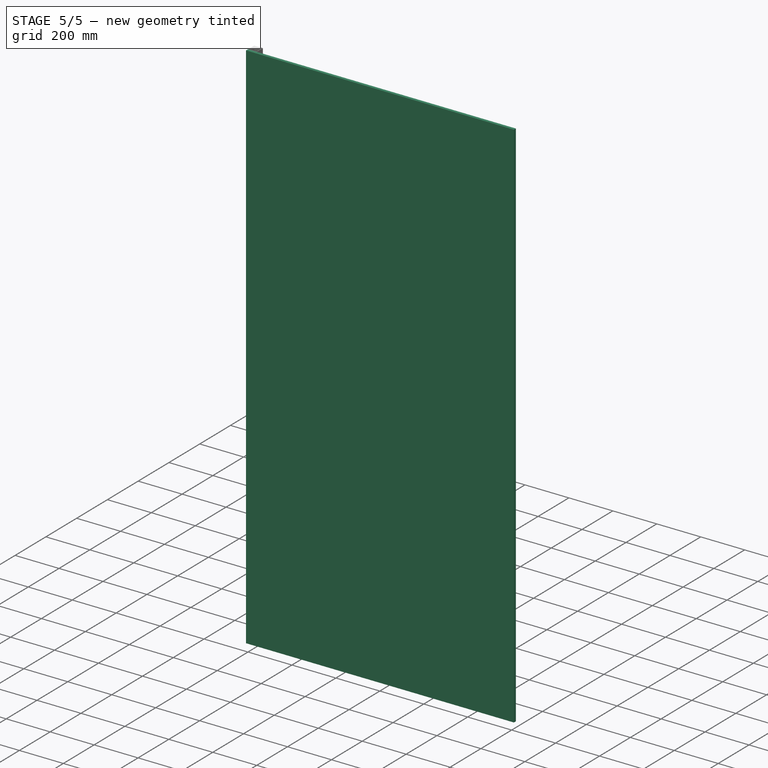
[diagram: stage 5 of 5 — iso view after this stage's code; geometry added in this stage tinted green]
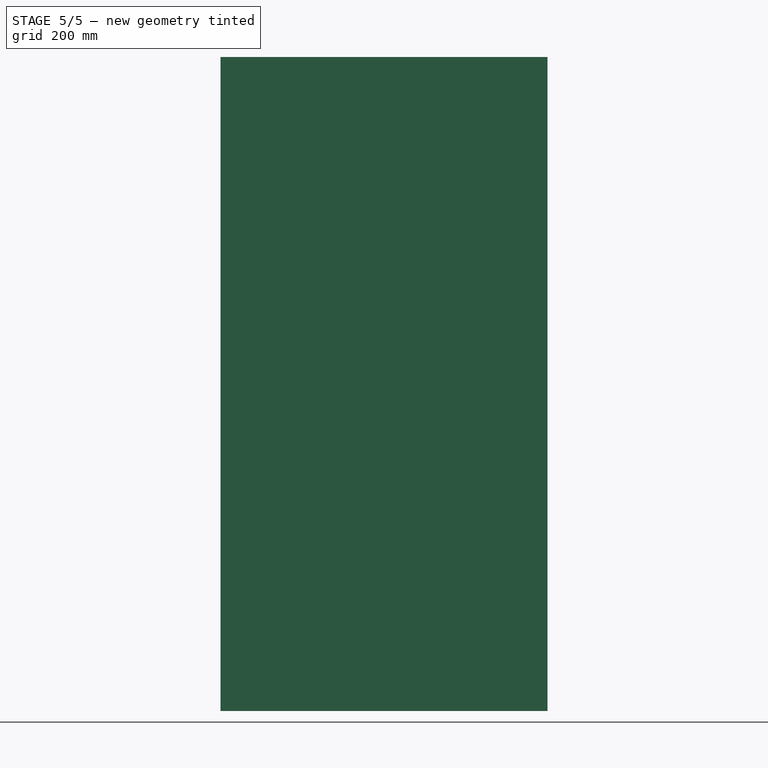
[diagram: stage 5 of 5 — front view after this stage's code; geometry added in this stage tinted green]
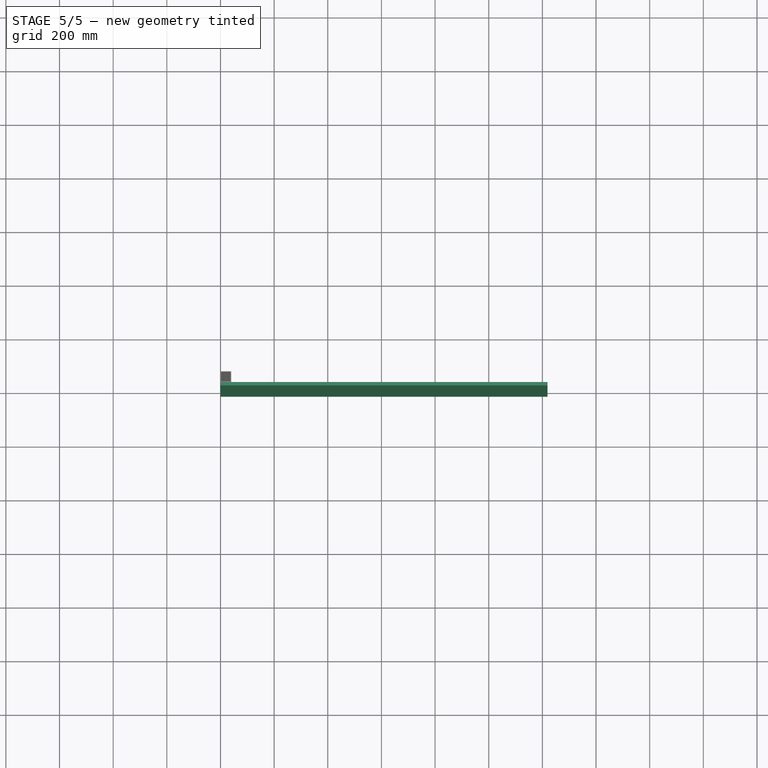
[diagram: stage 5 of 5 — top view after this stage's code; geometry added in this stage tinted green]
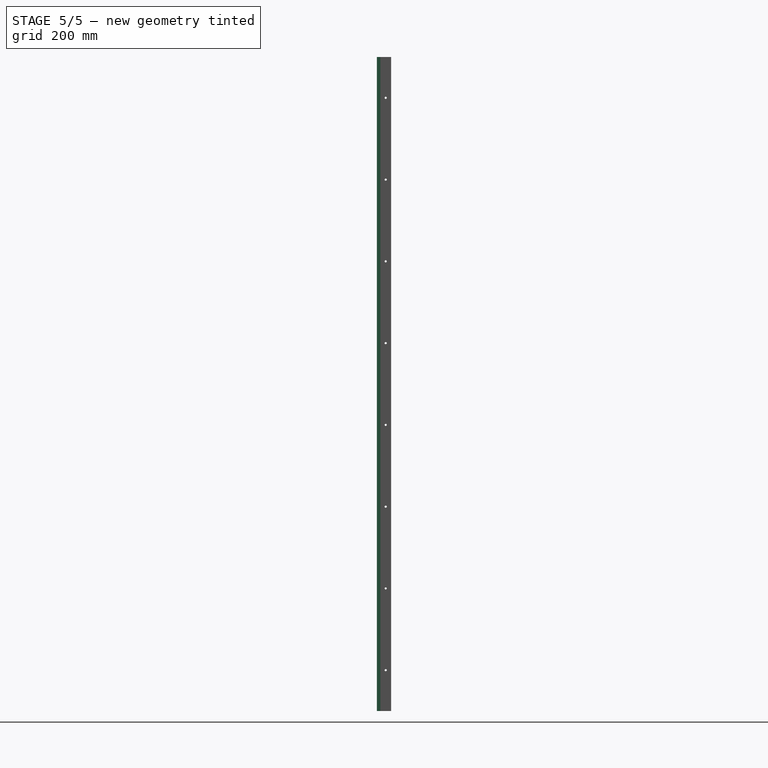
[diagram: stage 5 of 5 — right view after this stage's code; geometry added in this stage tinted green]
FEATURE [PartDesign::Draft] Draft001
  Angle = 45
  Base = -> Draft [Face9]
  BaseFeature = -> Draft
  NeutralPlane = -> Draft [Face4]
  Refine = true
  SupportTransform = false
  Suppressed = false
FEATURE [Sketcher::SketchObject] Sketch004
  ArcFitTolerance = 1e-06
  AttachmentSupport = -> [Draft001]
  ExternalGeometry = -> [Draft001]
  FullyConstrained = true
  MakeInternals = false
  MapMode = 5
  Placement = pos=(0,0,0) rot=(0.57735,-0.57735,-0.57735;2.0944rad)
  expr: Constraints[13] = Spreadsheet.hole_dia
  expr: Constraints[29] = Spreadsheet.ply_height_8 / 16
  sketch-geometry (31):
    g0: LineSegment [constr] StartX=-20 StartY=-1.8e-15 StartZ=0 EndX=-20 EndY=152.4 EndZ=0
    g1: LineSegment [constr] StartX=-20 StartY=152.4 StartZ=0 EndX=-20 EndY=304.8 EndZ=0
    g2: LineSegment [constr] StartX=-20 StartY=304.8 StartZ=0 EndX=-20 EndY=457.2 EndZ=0
    g3: LineSegment [constr] StartX=-20 StartY=457.2 StartZ=0 EndX=-20 EndY=609.6 EndZ=0
    g4: LineSegment [constr] StartX=-20 StartY=609.6 StartZ=0 EndX=-20 EndY=762 EndZ=0
    g5: LineSegment [constr] StartX=-20 StartY=762 StartZ=0 EndX=-20 EndY=914.4 EndZ=0
    g6: LineSegment [constr] StartX=-20 StartY=914.4 StartZ=0 EndX=-20 EndY=1066.8 EndZ=0
    g7: LineSegment [constr] StartX=-20 StartY=1066.8 StartZ=0 EndX=-20 EndY=1219.2 EndZ=0
    g8: Circle CenterX=-20 CenterY=1066.8 CenterZ=0 NormalX=0 NormalY=0 NormalZ=1 AngleXU=0 Radius=4
    g9: Circle [constr] CenterX=-20 CenterY=914.4 CenterZ=0 NormalX=0 NormalY=0 NormalZ=1 AngleXU=0 Radius=4
    g10: Circle CenterX=-20 CenterY=762 CenterZ=0 NormalX=0 NormalY=0 NormalZ=1 AngleXU=0 Radius=4
    g11: Circle [constr] CenterX=-20 CenterY=609.6 CenterZ=0 NormalX=0 NormalY=0 NormalZ=1 AngleXU=0 Radius=4
    g12: Circle CenterX=-20 CenterY=457.2 CenterZ=0 NormalX=0 NormalY=0 NormalZ=1 AngleXU=0 Radius=4
    g13: Circle [constr] CenterX=-20 CenterY=304.8 CenterZ=0 NormalX=0 NormalY=0 NormalZ=1 AngleXU=0 Radius=4
    g14: Circle CenterX=-20 CenterY=152.4 CenterZ=0 NormalX=0 NormalY=0 NormalZ=1 AngleXU=0 Radius=4
    g15: LineSegment [constr] StartX=-20 StartY=1219.2 StartZ=0 EndX=-20 EndY=1371.6 EndZ=0
    g16: LineSegment [constr] StartX=-20 StartY=1371.6 StartZ=0 EndX=-20 EndY=1524 EndZ=0
    g17: LineSegment [constr] StartX=-20 StartY=1524 StartZ=0 EndX=-20 EndY=1676.4 EndZ=0
    g18: LineSegment [constr] StartX=-20 StartY=1676.4 StartZ=0 EndX=-20 EndY=1828.8 EndZ=0
    g19: LineSegment [constr] StartX=-20 StartY=1828.8 StartZ=0 EndX=-20 EndY=1981.2 EndZ=0
    g20: LineSegment [constr] StartX=-20 StartY=1981.2 StartZ=0 EndX=-20 EndY=2133.6 EndZ=0
    g21: LineSegment [constr] StartX=-20 StartY=2133.6 StartZ=0 EndX=-20 EndY=2286 EndZ=0
    g22: LineSegment [constr] StartX=-20 StartY=2286 StartZ=0 EndX=-20 EndY=2438.4 EndZ=0
    g23: Circle [constr] CenterX=-20 CenterY=1219.2 CenterZ=0 NormalX=0 NormalY=0 NormalZ=1 AngleXU=0 Radius=4
    g24: Circle CenterX=-20 CenterY=1371.6 CenterZ=0 NormalX=0 NormalY=0 NormalZ=1 AngleXU=0 Radius=4
    g25: Circle [constr] CenterX=-20 CenterY=1524 CenterZ=0 NormalX=0 NormalY=0 NormalZ=1 AngleXU=0 Radius=4
    g26: Circle CenterX=-20 CenterY=1676.4 CenterZ=0 NormalX=0 NormalY=0 NormalZ=1 AngleXU=0 Radius=4
    g27: Circle [constr] CenterX=-20 CenterY=1828.8 CenterZ=0 NormalX=0 NormalY=0 NormalZ=1 AngleXU=0 Radius=4
    g28: Circle CenterX=-20 CenterY=1981.2 CenterZ=0 NormalX=0 NormalY=0 NormalZ=1 AngleXU=0 Radius=4
    g29: Circle [constr] CenterX=-20 CenterY=2133.6 CenterZ=0 NormalX=0 NormalY=0 NormalZ=1 AngleXU=0 Radius=4
    g30: Circle CenterX=-20 CenterY=2286 CenterZ=0 NormalX=0 NormalY=0 NormalZ=1 AngleXU=0 Radius=4
  constraints (77):
    c: Coincident(g8,g6)
    c: Coincident(g9,g5)
    c: Coincident(g10,g4)
    c: Coincident(g11,g3)
    c: Coincident(g12,g2)
    c: Coincident(g13,g1)
    c: Coincident(g14,g0)
    c: Equal(g14,g13)
    c: Equal(g13,g12)
    c: Equal(g12,g11)
    c: Equal(g11,g10)
    c: Equal(g10,g9)
    c: Equal(g9,g8)
    c: Diameter(g8) = 8
    c: Symmetric(g-4,g-1,g0)
    c: Coincident(g0,g1)
    c: Vertical(g1)
    c: Vertical(g0)
    c: Coincident(g1,g2)
    c: Vertical(g2)
    c: Vertical(g3)
    c: Coincident(g3,g4)
    c: Vertical(g4)
    c: Coincident(g4,g5)
    c: Vertical(g5)
    c: Coincident(g5,g6)
    c: Vertical(g6)
    c: Coincident(g6,g7)
    c: Vertical(g7)
    c: DistanceY(g0,g0) = 152.4
    c: Equal(g0,g1)
    c: Equal(g1,g2)
    c: Equal(g2,g3)
    c: Equal(g3,g4)
    c: Equal(g4,g5)
    c: Equal(g5,g6)
    c: Equal(g6,g7)
    c: Coincident(g3,g2)
    c: Coincident(g15,g7)
    c: Vertical(g15)
    c: Coincident(g16,g15)
    c: Vertical(g16)
    c: Coincident(g17,g16)
    c: Vertical(g17)
    c: Coincident(g18,g17)
    c: Vertical(g18)
    c: Coincident(g19,g18)
    c: Vertical(g19)
    c: Coincident(g20,g19)
    c: Vertical(g20)
    c: Coincident(g21,g20)
    c: Vertical(g21)
    c: Coincident(g22,g21)
    c: Symmetric(g-3,g-3,g22)
    c: Equal(g22,g21)
    c: Equal(g21,g20)
    c: Equal(g20,g19)
    c: Equal(g19,g18)
    c: Equal(g18,g17)
    c: Equal(g17,g16)
    c: Equal(g16,g15)
    c: Coincident(g23,g7)
    c: Coincident(g25,g16)
    c: Coincident(g26,g17)
    c: Coincident(g27,g18)
    c: Coincident(g28,g19)
    c: Coincident(g29,g20)
    c: Coincident(g30,g21)
    c: Equal(g30,g29)
    c: Equal(g29,g28)
    c: Equal(g28,g27)
    c: Equal(g27,g26)
    c: Equal(g26,g25)
    c: Equal(g25,g24)
    c: Equal(g24,g23)
    c: Equal(g23,g8)
    c: Coincident(g15,g24)
FEATURE [PartDesign::Pocket] Pocket
  BaseFeature = -> Draft001
  Direction = (1,0,0)
  Length = 5
  Length2 = 5
  Profile = -> Sketch004
  ReferenceAxis = -> Sketch004 [N_Axis]
  Refine = true
  Suppressed = false
  Type = 1
FEATURE [Sketcher::SketchObject] Sketch007
  ArcFitTolerance = 1e-06
  AttachmentSupport = -> [XZ_Plane004]
  FullyConstrained = true
  MakeInternals = false
  MapMode = 5
  Placement = pos=(0,0,0) rot=(1,0,0;1.5708rad)
  expr: Constraints[10] = Spreadsheet.ply_width
  expr: Constraints[9] = Spreadsheet.ply_height
  sketch-geometry (4):
    g0: LineSegment StartX=0 StartY=0 StartZ=0 EndX=914.4 EndY=0 EndZ=0
    g1: LineSegment StartX=914.4 StartY=0 StartZ=0 EndX=914.4 EndY=1828.8 EndZ=0
    g2: LineSegment StartX=914.4 StartY=1828.8 StartZ=0 EndX=0 EndY=1828.8 EndZ=0
    g3: LineSegment StartX=0 StartY=1828.8 StartZ=0 EndX=0 EndY=0 EndZ=0
  constraints (11):
    c: Coincident(g0,g1)
    c: Coincident(g1,g2)
    c: Coincident(g2,g3)
    c: Coincident(g3,g0)
    c: Horizontal(g0)
    c: Horizontal(g2)
    c: Vertical(g1)
    c: Vertical(g3)
    c: Coincident(g0,g-1)
    c: DistanceY(g3,g3) = 1828.8
    c: DistanceX(g2,g2) = 914.4
FEATURE [PartDesign::Pad] Pad003
  Direction = (0,-1,2e-16)
  Length = 12.7
  Length2 = 10
  Placement = pos=(0,0,0) rot=(1,0,0;1.5708rad)
  Profile = -> Sketch007
  ReferenceAxis = -> Sketch007 [N_Axis]
  Refine = true
  Suppressed = false
  Type = 0
  expr: Length = Spreadsheet.ply_thick
FEATURE [Sketcher::SketchObject] Sketch011
  ArcFitTolerance = 1e-06
  AttachmentSupport = -> [XZ_Plane007]
  FullyConstrained = true
  MakeInternals = false
  MapMode = 5
  Placement = pos=(0,0,0) rot=(1,0,0;1.5708rad)
  expr: Constraints[10] = Spreadsheet.ply_width_8
  expr: Constraints[9] = Spreadsheet.ply_height_8
  sketch-geometry (4):
    g0: LineSegment StartX=0 StartY=0 StartZ=0 EndX=1219.2 EndY=0 EndZ=0
    g1: LineSegment StartX=1219.2 StartY=0 StartZ=0 EndX=1219.2 EndY=2438.4 EndZ=0
    g2: LineSegment StartX=1219.2 StartY=2438.4 StartZ=0 EndX=0 EndY=2438.4 EndZ=0
    g3: LineSegment StartX=0 StartY=2438.4 StartZ=0 EndX=0 EndY=0 EndZ=0
  constraints (11):
    c: Coincident(g0,g1)
    c: Coincident(g1,g2)
    c: Coincident(g2,g3)
    c: Coincident(g3,g0)
    c: Horizontal(g0)
    c: Horizontal(g2)
    c: Vertical(g1)
    c: Vertical(g3)
    c: Coincident(g0,g-1)
    c: DistanceY(g3,g3) = 2438.4
    c: DistanceX(g2,g2) = 1219.2
FEATURE [PartDesign::Pad] Pad005
  Direction = (0,-1,2e-16)
  Length = 12.7
  Length2 = 10
  Placement = pos=(0,0,0) rot=(1,0,0;1.5708rad)
  Profile = -> Sketch011
  ReferenceAxis = -> Sketch011 [N_Axis]
  Refine = true
  Suppressed = false
  Type = 0
  expr: Length = Spreadsheet.ply_thick_8
FEATURE [PartDesign::Line] DatumLine
  AttacherType = Attacher::AttachEngineLine
  AttachmentOffset = pos=(-20,-20,0) rot=(0,0,1;0rad)
  AttachmentSupport = -> [Z_Axis001]
  Length = 20
  MapMode = 16
  Placement = pos=(20,20,0) rot=(0,0,1;3.14159rad)
  ResizeMode = 0
  expr: .AttachmentOffset.Base.x = -Spreadsheet.pipe_x / 2
  expr: .AttachmentOffset.Base.y = -Spreadsheet.pipe_y / 2
FEATURE [PartDesign::PolarPattern] PolarPattern
  Angle = 90
  Axis = -> DatumLine
  BaseFeature = -> Pocket
  Mode = 0
  Occurrences = 2
  Offset = 120
  Originals = -> [Pocket]
  Refine = true
  Suppressed = false
  TransformMode = 0
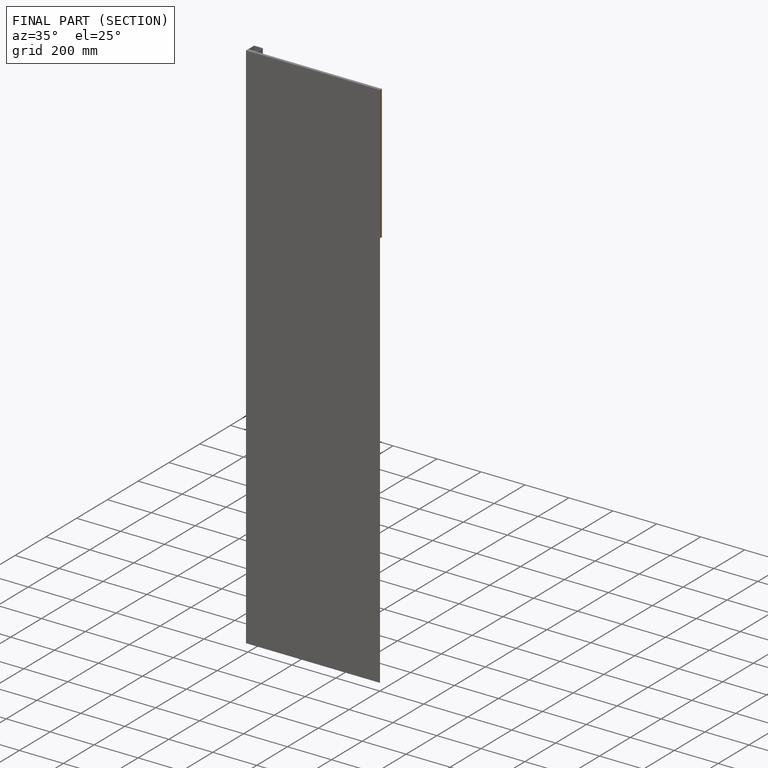
[diagram: finished part — half-section view (interior)]
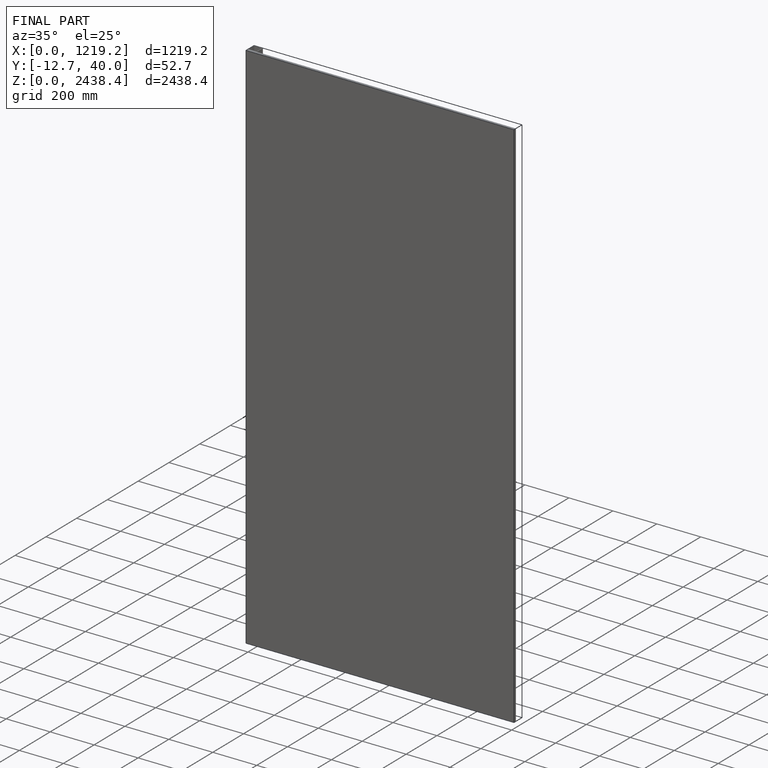
[diagram: finished part — iso view with bounding-box wireframe]
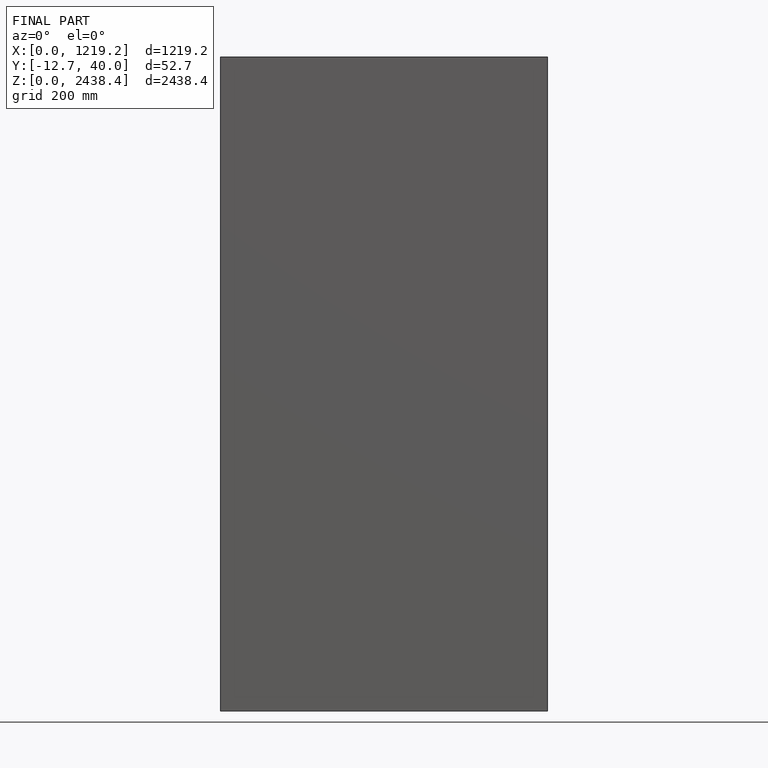
[diagram: finished part — front view with bounding-box wireframe]
